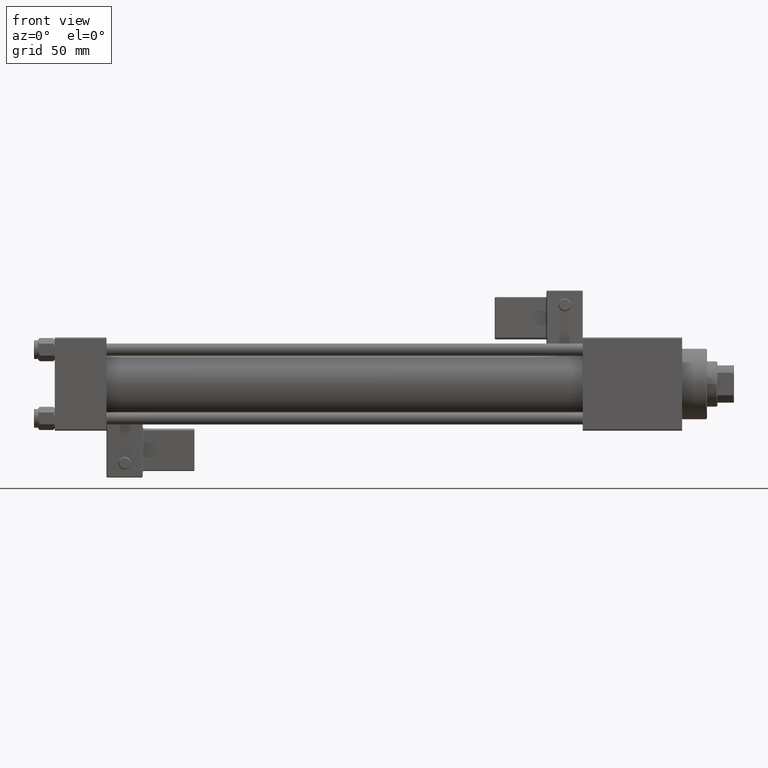
[diagram: clean part render]
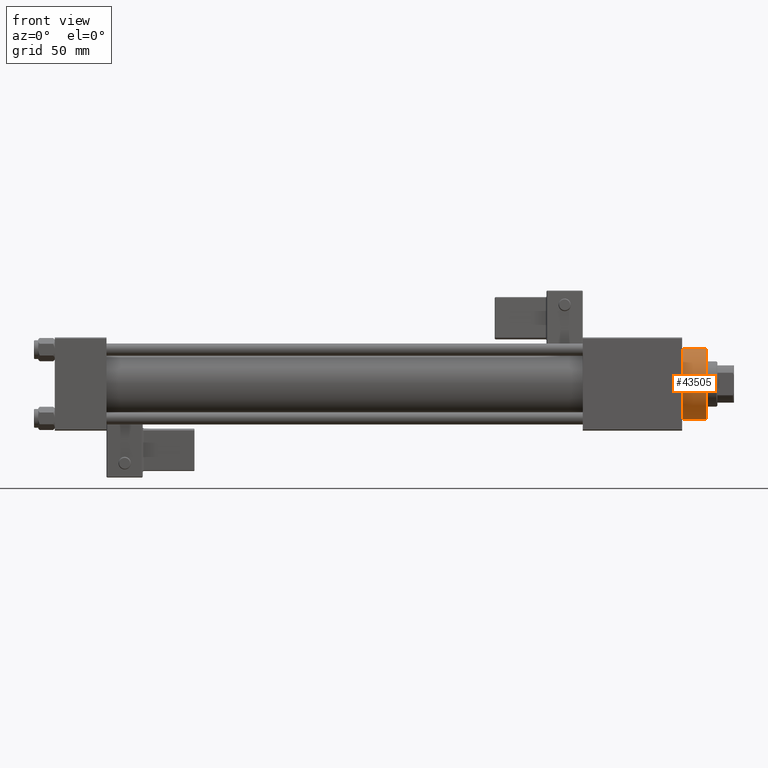
[diagram: same view with one face highlighted and labeled with its STEP entity id]
A machine part, front view. The second image highlights one B-rep face of the part: STEP entity #43505.
In plain terms, the highlighted cylindrical surface (edge-blend (fillet) strip) has radius 17 mm, axis along (-1, -0, -0).
Its self-contained STEP definition (entity closure, byte-faithful):
#3380 = VECTOR ( 'NONE', #20592, 1000.000000000000000 ) ;
#4176 = CIRCLE ( 'NONE', #38077, 17.00000000000000000 ) ;
#6787 = VERTEX_POINT ( 'NONE', #16873 ) ;
#7095 = DIRECTION ( 'NONE',  ( 0.000000000000000000, 0.000000000000000000, -1.000000000000000000 ) ) ;
#7928 = ORIENTED_EDGE ( 'NONE', *, *, #53737, .T. ) ;
#8134 = ORIENTED_EDGE ( 'NONE', *, *, #43569, .T. ) ;
#10037 = CARTESIAN_POINT ( 'NONE',  ( 17.00000000000000000, 2.081899558550500280E-15, 40.19999999999999574 ) ) ;
#13920 = FACE_OUTER_BOUND ( 'NONE', #19448, .T. ) ;
#16311 = ORIENTED_EDGE ( 'NONE', *, *, #49469, .F. ) ;
#16314 = AXIS2_PLACEMENT_3D ( 'NONE', #31301, #32119, #40297 ) ;
#16873 = CARTESIAN_POINT ( 'NONE',  ( -17.00000000000000000, 0.000000000000000000, 40.19999999999999574 ) ) ;
#19190 = CARTESIAN_POINT ( 'NONE',  ( 17.00000000000000000, 2.081899558550500280E-15, 28.69999999999999929 ) ) ;
#19448 = EDGE_LOOP ( 'NONE', ( #16311, #8134, #24877, #7928 ) ) ;
#20592 = DIRECTION ( 'NONE',  ( -0.000000000000000000, -0.000000000000000000, -1.000000000000000000 ) ) ;
#20613 = CARTESIAN_POINT ( 'NONE',  ( -17.00000000000000000, 0.000000000000000000, 40.70000000000000284 ) ) ;
#23135 = DIRECTION ( 'NONE',  ( 1.000000000000000000, 0.000000000000000000, 0.000000000000000000 ) ) ;
#24877 = ORIENTED_EDGE ( 'NONE', *, *, #42908, .T. ) ;
#25216 = LINE ( 'NONE', #41031, #3380 ) ;
#25499 = LINE ( 'NONE', #20613, #38890 ) ;
#28027 = CYLINDRICAL_SURFACE ( 'NONE', #16314, 17.00000000000000000 ) ;
#31301 = CARTESIAN_POINT ( 'NONE',  ( 0.000000000000000000, 0.000000000000000000, 40.70000000000000284 ) ) ;
#32119 = DIRECTION ( 'NONE',  ( -0.000000000000000000, -0.000000000000000000, -1.000000000000000000 ) ) ;
#32734 = DIRECTION ( 'NONE',  ( 0.000000000000000000, 0.000000000000000000, 1.000000000000000000 ) ) ;
#33225 = VERTEX_POINT ( 'NONE', #19190 ) ;
#35844 = VERTEX_POINT ( 'NONE', #40828 ) ;
#36214 = CARTESIAN_POINT ( 'NONE',  ( 0.000000000000000000, 0.000000000000000000, 40.19999999999999574 ) ) ;
#36551 = CARTESIAN_POINT ( 'NONE',  ( 0.000000000000000000, 0.000000000000000000, 28.69999999999999929 ) ) ;
#38077 = AXIS2_PLACEMENT_3D ( 'NONE', #36214, #7095, #23135 ) ;
#38890 = VECTOR ( 'NONE', #49467, 1000.000000000000000 ) ;
#40297 = DIRECTION ( 'NONE',  ( -1.000000000000000000, 0.000000000000000000, 0.000000000000000000 ) ) ;
#40828 = CARTESIAN_POINT ( 'NONE',  ( -17.00000000000000000, 0.000000000000000000, 28.69999999999999929 ) ) ;
#41031 = CARTESIAN_POINT ( 'NONE',  ( 17.00000000000000000, 2.081899558550500280E-15, 40.70000000000000284 ) ) ;
#42908 = EDGE_CURVE ( 'NONE', #6787, #35844, #25499, .T. ) ;
#43505 = ADVANCED_FACE ( 'NONE', ( #13920 ), #28027, .T. ) ;
#43569 = EDGE_CURVE ( 'NONE', #50558, #6787, #4176, .T. ) ;
#46117 = CIRCLE ( 'NONE', #49623, 17.00000000000000000 ) ;
#49467 = DIRECTION ( 'NONE',  ( -0.000000000000000000, -0.000000000000000000, -1.000000000000000000 ) ) ;
#49469 = EDGE_CURVE ( 'NONE', #50558, #33225, #25216, .T. ) ;
#49623 = AXIS2_PLACEMENT_3D ( 'NONE', #36551, #32734, #53121 ) ;
#50558 = VERTEX_POINT ( 'NONE', #10037 ) ;
#53121 = DIRECTION ( 'NONE',  ( 1.000000000000000000, 0.000000000000000000, 0.000000000000000000 ) ) ;
#53737 = EDGE_CURVE ( 'NONE', #35844, #33225, #46117, .T. ) ;